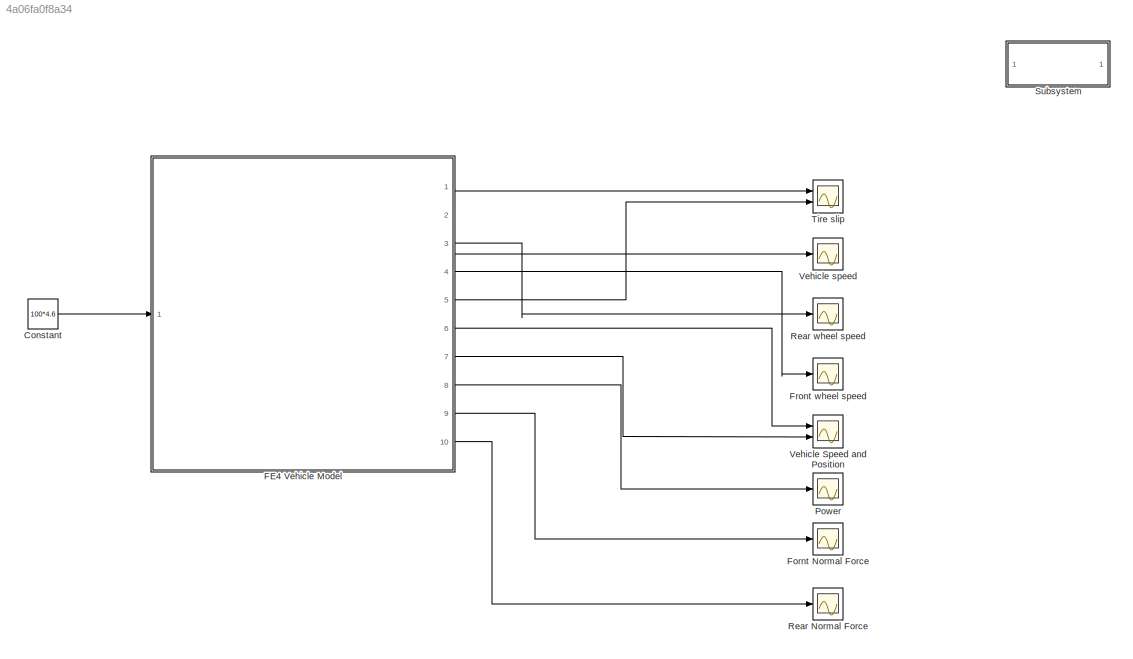
MODEL slx_4a06fa0f8a34
KIND model
CONFIG AbsTol = 1e-3
CONFIG FixedStep = auto
CONFIG MaxStep = auto
CONFIG MinStep = auto
CONFIG PreLoadFcn = load CarSim_FE4.mat\nload Vehicle_information_test_0118_2017.mat
CONFIG RelTol = 1e-3
CONFIG SampleTimeConstraint = Unconstrained
CONFIG Solver = ode23t
CONFIG SolverMode = Auto
CONFIG SolverName = ode23t
CONFIG StartTime = 0.0
CONFIG StopTime = 20
BLOCK [Constant] Constant
  Value = 100*4.6
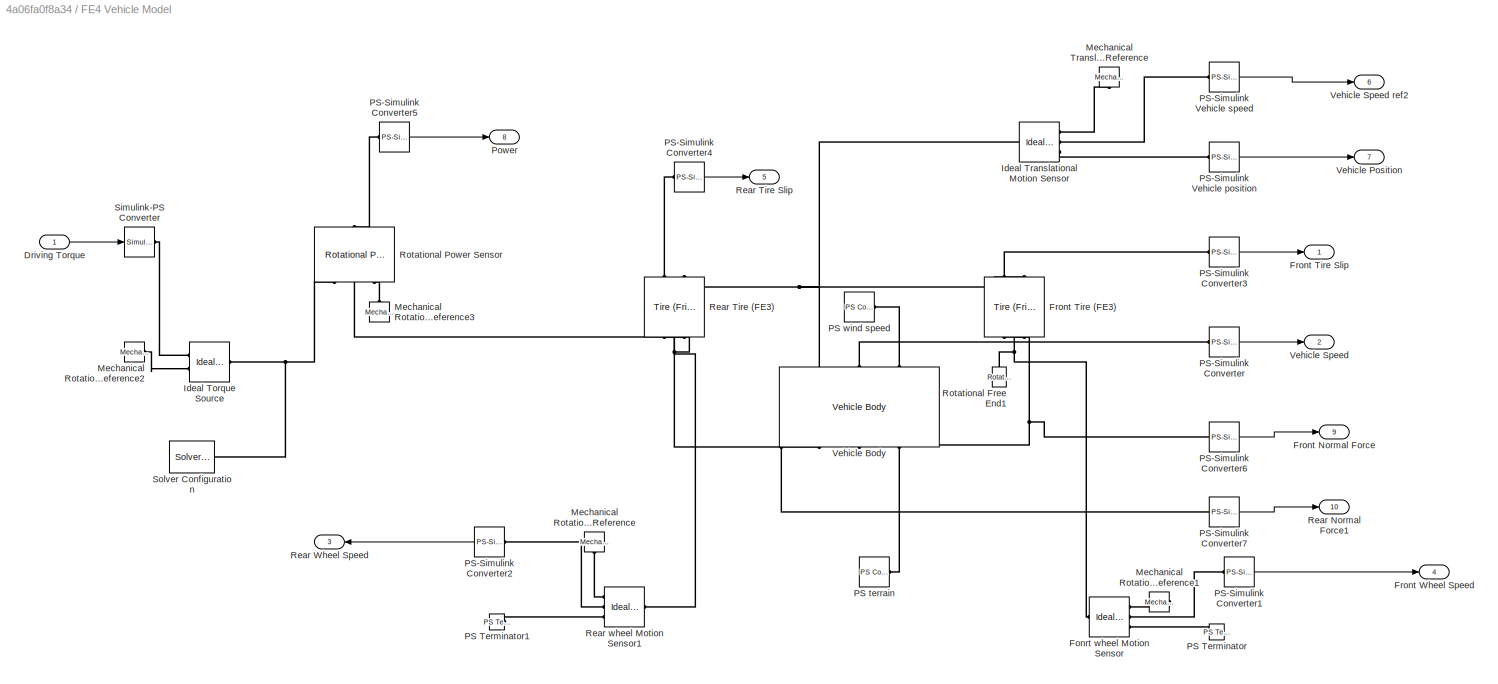
BLOCK [SubSystem] FE4 Vehicle Model
  Ports = [1, 10]
  RequestExecContextInheritance = off
  Variant = off
BLOCK [Inport] FE4 Vehicle Model/Driving Torque
  IconDisplay = Port number
BLOCK [Reference] FE4 Vehicle Model/Fonrt wheel Motion Sensor  REF=fl_lib/Mechanical/Mechanical Sensors/Ideal Rotational
Motion Sensor
  Ports = [0, 0, 0, 0, 0, 1, 3]
  SourceBlock = fl_lib/Mechanical/Mechanical Sensors/Ideal Rotational\nMotion Sensor
  SourceType = Ideal Rotational\nMotion Sensor
BLOCK [Outport] FE4 Vehicle Model/Front Normal Force
  IconDisplay = Port number
  Port = 9
BLOCK [Reference] FE4 Vehicle Model/Front Tire (FE3)  REF=sdl_lib/Tires & Vehicles/Tire (Friction
Parameterized)
  Ports = [0, 0, 0, 0, 0, 2, 2]
  SourceBlock = sdl_lib/Tires & Vehicles/Tire (Friction\nParameterized)
  SourceType = Tire (Friction\nParameterized)
BLOCK [Outport] FE4 Vehicle Model/Front Tire Slip
  IconDisplay = Port number
BLOCK [Outport] FE4 Vehicle Model/Front Wheel Speed
  IconDisplay = Port number
  Port = 4
BLOCK [Reference] FE4 Vehicle Model/Ideal Torque Source  REF=fl_lib/Mechanical/Mechanical Sources/Ideal Torque Source
  Ports = [0, 0, 0, 0, 0, 1, 2]
  SourceBlock = fl_lib/Mechanical/Mechanical Sources/Ideal Torque Source
  SourceType = Ideal Torque Source
BLOCK [Reference] FE4 Vehicle Model/Ideal Translational Motion Sensor  REF=fl_lib/Mechanical/Mechanical Sensors/Ideal Translational
Motion Sensor
  Ports = [0, 0, 0, 0, 0, 1, 3]
  SourceBlock = fl_lib/Mechanical/Mechanical Sensors/Ideal Translational\nMotion Sensor
  SourceType = Ideal Translational\nMotion Sensor
BLOCK [Reference] FE4 Vehicle Model/Mechanical Rotational Reference  REF=fl_lib/Mechanical/Rotational Elements/Mechanical
Rotational Reference
  Ports = [0, 0, 0, 0, 0, 1]
  SourceBlock = fl_lib/Mechanical/Rotational Elements/Mechanical\nRotational Reference
  SourceType = Mechanical\nRotational Reference
BLOCK [Reference] FE4 Vehicle Model/Mechanical Rotational Reference1  REF=fl_lib/Mechanical/Rotational Elements/Mechanical
Rotational Reference
  Ports = [0, 0, 0, 0, 0, 1]
  SourceBlock = fl_lib/Mechanical/Rotational Elements/Mechanical\nRotational Reference
  SourceType = Mechanical\nRotational Reference
BLOCK [Reference] FE4 Vehicle Model/Mechanical Rotational Reference2  REF=fl_lib/Mechanical/Rotational Elements/Mechanical
Rotational Reference
  Ports = [0, 0, 0, 0, 0, 1]
  SourceBlock = fl_lib/Mechanical/Rotational Elements/Mechanical\nRotational Reference
  SourceType = Mechanical\nRotational Reference
BLOCK [Reference] FE4 Vehicle Model/Mechanical Rotational Reference3  REF=fl_lib/Mechanical/Rotational Elements/Mechanical
Rotational Reference
  Ports = [0, 0, 0, 0, 0, 1]
  SourceBlock = fl_lib/Mechanical/Rotational Elements/Mechanical\nRotational Reference
  SourceType = Mechanical\nRotational Reference
BLOCK [Reference] FE4 Vehicle Model/Mechanical Translational Reference  REF=fl_lib/Mechanical/Translational
Elements/Mechanical
Translational
Reference
  Ports = [0, 0, 0, 0, 0, 1]
  SourceBlock = fl_lib/Mechanical/Translational\nElements/Mechanical\nTranslational\nReference
  SourceType = Mechanical\nTranslational\nReference
BLOCK [Reference] FE4 Vehicle Model/PS Terminator  REF=fl_lib/Physical Signals/Sinks/PS Terminator
  Ports = [0, 0, 0, 0, 0, 1]
  SourceBlock = fl_lib/Physical Signals/Sinks/PS Terminator
  SourceType = PS Terminator
BLOCK [Reference] FE4 Vehicle Model/PS Terminator1  REF=fl_lib/Physical Signals/Sinks/PS Terminator
  Ports = [0, 0, 0, 0, 0, 1]
  SourceBlock = fl_lib/Physical Signals/Sinks/PS Terminator
  SourceType = PS Terminator
BLOCK [Reference] FE4 Vehicle Model/PS terrain  REF=fl_lib/Physical Signals/Sources/PS Constant
  Ports = [0, 0, 0, 0, 0, 0, 1]
  SourceBlock = fl_lib/Physical Signals/Sources/PS Constant
  SourceType = PS Constant
BLOCK [Reference] FE4 Vehicle Model/PS wind speed  REF=fl_lib/Physical Signals/Sources/PS Constant
  Ports = [0, 0, 0, 0, 0, 0, 1]
  SourceBlock = fl_lib/Physical Signals/Sources/PS Constant
  SourceType = PS Constant
BLOCK [Reference] FE4 Vehicle Model/PS-Simulink Converter  REF=nesl_utility/PS-Simulink
Converter
  Ports = [0, 1, 0, 0, 0, 1]
  SourceBlock = nesl_utility/PS-Simulink\nConverter
  SourceType = PS-Simulink\nConverter
BLOCK [Reference] FE4 Vehicle Model/PS-Simulink Converter1  REF=nesl_utility/PS-Simulink
Converter
  Ports = [0, 1, 0, 0, 0, 1]
  SourceBlock = nesl_utility/PS-Simulink\nConverter
  SourceType = PS-Simulink\nConverter
BLOCK [Reference] FE4 Vehicle Model/PS-Simulink Converter2  REF=nesl_utility/PS-Simulink
Converter
  Ports = [0, 1, 0, 0, 0, 1]
  SourceBlock = nesl_utility/PS-Simulink\nConverter
  SourceType = PS-Simulink\nConverter
BLOCK [Reference] FE4 Vehicle Model/PS-Simulink Converter3  REF=nesl_utility/PS-Simulink
Converter
  Ports = [0, 1, 0, 0, 0, 1]
  SourceBlock = nesl_utility/PS-Simulink\nConverter
  SourceType = PS-Simulink\nConverter
BLOCK [Reference] FE4 Vehicle Model/PS-Simulink Converter4  REF=nesl_utility/PS-Simulink
Converter
  Ports = [0, 1, 0, 0, 0, 1]
  SourceBlock = nesl_utility/PS-Simulink\nConverter
  SourceType = PS-Simulink\nConverter
BLOCK [Reference] FE4 Vehicle Model/PS-Simulink Converter5  REF=nesl_utility/PS-Simulink
Converter
  Ports = [0, 1, 0, 0, 0, 1]
  SourceBlock = nesl_utility/PS-Simulink\nConverter
  SourceType = PS-Simulink\nConverter
BLOCK [Reference] FE4 Vehicle Model/PS-Simulink Converter6  REF=nesl_utility/PS-Simulink
Converter
  Ports = [0, 1, 0, 0, 0, 1]
  SourceBlock = nesl_utility/PS-Simulink\nConverter
  SourceType = PS-Simulink\nConverter
BLOCK [Reference] FE4 Vehicle Model/PS-Simulink Converter7  REF=nesl_utility/PS-Simulink
Converter
  Ports = [0, 1, 0, 0, 0, 1]
  SourceBlock = nesl_utility/PS-Simulink\nConverter
  SourceType = PS-Simulink\nConverter
BLOCK [Reference] FE4 Vehicle Model/PS-Simulink Vehicle position  REF=nesl_utility/PS-Simulink
Converter
  Ports = [0, 1, 0, 0, 0, 1]
  SourceBlock = nesl_utility/PS-Simulink\nConverter
  SourceType = PS-Simulink\nConverter
BLOCK [Reference] FE4 Vehicle Model/PS-Simulink Vehicle speed  REF=nesl_utility/PS-Simulink
Converter
  Ports = [0, 1, 0, 0, 0, 1]
  SourceBlock = nesl_utility/PS-Simulink\nConverter
  SourceType = PS-Simulink\nConverter
BLOCK [Outport] FE4 Vehicle Model/Power
  IconDisplay = Port number
  Port = 8
BLOCK [Outport] FE4 Vehicle Model/Rear Normal Force1
  IconDisplay = Port number
  Port = 10
BLOCK [Reference] FE4 Vehicle Model/Rear Tire (FE3)  REF=sdl_lib/Tires & Vehicles/Tire (Friction
Parameterized)
  Ports = [0, 0, 0, 0, 0, 2, 2]
  SourceBlock = sdl_lib/Tires & Vehicles/Tire (Friction\nParameterized)
  SourceType = Tire (Friction\nParameterized)
BLOCK [Outport] FE4 Vehicle Model/Rear Tire Slip
  IconDisplay = Port number
  Port = 5
BLOCK [Outport] FE4 Vehicle Model/Rear Wheel Speed
  IconDisplay = Port number
  Port = 3
BLOCK [Reference] FE4 Vehicle Model/Rear wheel Motion Sensor1  REF=fl_lib/Mechanical/Mechanical Sensors/Ideal Rotational
Motion Sensor
  Ports = [0, 0, 0, 0, 0, 1, 3]
  SourceBlock = fl_lib/Mechanical/Mechanical Sensors/Ideal Rotational\nMotion Sensor
  SourceType = Ideal Rotational\nMotion Sensor
BLOCK [Reference] FE4 Vehicle Model/Rotational Free End1  REF=fl_lib/Mechanical/Rotational Elements/Rotational Free End
  Ports = [0, 0, 0, 0, 0, 1]
  SourceBlock = fl_lib/Mechanical/Rotational Elements/Rotational Free End
  SourceType = Rotational Free End
BLOCK [Reference] FE4 Vehicle Model/Rotational Power Sensor  REF=sdl_lib/Sensors/Rotational Power
Sensor
  Ports = [0, 0, 0, 0, 0, 3, 1]
  SourceBlock = sdl_lib/Sensors/Rotational Power\nSensor
  SourceType = Rotational Power\nSensor
BLOCK [Reference] FE4 Vehicle Model/Simulink-PS Converter  REF=nesl_utility/Simulink-PS
Converter
  Ports = [1, 0, 0, 0, 0, 0, 1]
  SourceBlock = nesl_utility/Simulink-PS\nConverter
  SourceType = Simulink-PS\nConverter
BLOCK [Reference] FE4 Vehicle Model/Solver Configuration  REF=nesl_utility/Solver
Configuration
  Ports = [0, 0, 0, 0, 0, 0, 1]
  SourceBlock = nesl_utility/Solver\nConfiguration
  SourceType = Solver\nConfiguration
BLOCK [Reference] FE4 Vehicle Model/Vehicle Body  REF=sdl_lib/Tires & Vehicles/Vehicle Body
  Ports = [0, 0, 0, 0, 0, 3, 3]
  SourceBlock = sdl_lib/Tires & Vehicles/Vehicle Body
  SourceType = Vehicle Body
BLOCK [Outport] FE4 Vehicle Model/Vehicle Position
  IconDisplay = Port number
  Port = 7
BLOCK [Outport] FE4 Vehicle Model/Vehicle Speed
  IconDisplay = Port number
  Port = 2
BLOCK [Outport] FE4 Vehicle Model/Vehicle Speed ref2
  IconDisplay = Port number
  Port = 6
BLOCK [Scope] Fornt Normal Force
  Ports = [1]
  ScopeSpecificationString = Simulink.scopes.TimeScopeBlockCfg('CurrentConfiguration', extmgr.ConfigurationSet(extmgr.Configuration('Core','General UI',true),extmgr.Configuration('Core','Source UI',true),extmgr.Configuration('Sources','WiredSimulink',true,'DataLoggingLimitDataPoints',true,'DataLoggingSaveFormat','Array','DataLoggingDecimation','1','DataLoggingDecimateData',true,'DataLoggingVariableName','ScopeData3'),extmgr.C...<+1733ch>
BLOCK [Scope] Front wheel speed
  Ports = [1]
  ScopeSpecificationString = Simulink.scopes.TimeScopeBlockCfg('CurrentConfiguration', extmgr.ConfigurationSet(extmgr.Configuration('Core','General UI',true),extmgr.Configuration('Core','Source UI',true),extmgr.Configuration('Sources','WiredSimulink',true,'DataLoggingLimitDataPoints',true,'DataLoggingSaveFormat','Array','DataLoggingDecimation','1','DataLoggingDecimateData',true,'DataLoggingVariableName','ScopeData4'),extmgr.C...<+1733ch>
BLOCK [Scope] Power
  Ports = [1]
  ScopeSpecificationString = Simulink.scopes.TimeScopeBlockCfg('CurrentConfiguration', extmgr.ConfigurationSet(extmgr.Configuration('Core','General UI',true),extmgr.Configuration('Core','Source UI',true),extmgr.Configuration('Sources','WiredSimulink',true,'DataLoggingLimitDataPoints',true,'DataLoggingSaveFormat','Array','DataLoggingDecimation','1','DataLoggingDecimateData',true,'DataLoggingVariableName','ScopeData2'),extmgr.C...<+1723ch>
BLOCK [Scope] Rear Normal Force
  Ports = [1]
  ScopeSpecificationString = Simulink.scopes.TimeScopeBlockCfg('CurrentConfiguration', extmgr.ConfigurationSet(extmgr.Configuration('Core','General UI',true),extmgr.Configuration('Core','Source UI',true),extmgr.Configuration('Sources','WiredSimulink',true,'DataLoggingLimitDataPoints',true,'DataLoggingSaveFormat','Array','DataLoggingDecimation','1','DataLoggingDecimateData',true,'DataLoggingVariableName','ScopeData4'),extmgr.C...<+1734ch>
BLOCK [Scope] Rear wheel speed
  Ports = [1]
  ScopeSpecificationString = Simulink.scopes.TimeScopeBlockCfg('CurrentConfiguration', extmgr.ConfigurationSet(extmgr.Configuration('Core','General UI',true),extmgr.Configuration('Core','Source UI',true),extmgr.Configuration('Sources','WiredSimulink',true,'DataLoggingVariableName','ScopeData1'),extmgr.Configuration('Visuals','Time Domain',true,'SerializedDisplays',{struct('MinYLimReal','-110.78091','MaxYLimReal','997.02819','...<+1447ch>
BLOCK [SubSystem] Subsystem
  OpenFcn = open_system('simscape')
  Ports = []
  RequestExecContextInheritance = off
  ShowPortLabels = none
  Variant = off
BLOCK [Scope] Tire slip
  NumInputPorts = 2
  Ports = [2]
  ScopeSpecificationString = Simulink.scopes.TimeScopeBlockCfg('CurrentConfiguration', extmgr.ConfigurationSet(extmgr.Configuration('Core','General UI',true),extmgr.Configuration('Core','Source UI',true),extmgr.Configuration('Sources','WiredSimulink',true,'DataLoggingLimitDataPoints',true,'DataLoggingSaveFormat','Array','DataLoggingDecimation','1','DataLoggingDecimateData',true,'DataLoggingVariableName','ScopeData1'),extmgr.C...<+2321ch>
BLOCK [Scope] Vehicle Speed and Position
  NumInputPorts = 2
  Ports = [2]
  ScopeSpecificationString = Simulink.scopes.TimeScopeBlockCfg('CurrentConfiguration', extmgr.ConfigurationSet(extmgr.Configuration('Core','General UI',true),extmgr.Configuration('Core','Source UI',true),extmgr.Configuration('Sources','WiredSimulink',true,'DataLoggingLimitDataPoints',true,'DataLoggingSaveFormat','Array','DataLoggingDecimation','1','DataLoggingDecimateData',true,'DataLoggingVariableName','ScopeData1'),extmgr.C...<+2317ch>
BLOCK [Scope] Vehicle speed
  Ports = [1]
  ScopeSpecificationString = Simulink.scopes.TimeScopeBlockCfg('CurrentConfiguration', extmgr.ConfigurationSet(extmgr.Configuration('Core','General UI',true),extmgr.Configuration('Core','Source UI',true),extmgr.Configuration('Sources','WiredSimulink',true,'DataLoggingLimitDataPoints',true,'DataLoggingSaveFormat','Array','DataLoggingDecimation','1','DataLoggingDecimateData',true),extmgr.Configuration('Visuals','Time Domain',tr...<+1711ch>
LINE Constant:1 -> FE4 Vehicle Model:1
LINE FE4 Vehicle Model/Driving Torque:1 -> FE4 Vehicle Model/Simulink-PS Converter:1
LINE FE4 Vehicle Model/PS-Simulink Converter1:1 -> FE4 Vehicle Model/Front Wheel Speed:1
LINE FE4 Vehicle Model/PS-Simulink Converter2:1 -> FE4 Vehicle Model/Rear Wheel Speed:1
LINE FE4 Vehicle Model/PS-Simulink Converter3:1 -> FE4 Vehicle Model/Front Tire Slip:1
LINE FE4 Vehicle Model/PS-Simulink Converter4:1 -> FE4 Vehicle Model/Rear Tire Slip:1
LINE FE4 Vehicle Model/PS-Simulink Converter5:1 -> FE4 Vehicle Model/Power:1
LINE FE4 Vehicle Model/PS-Simulink Converter6:1 -> FE4 Vehicle Model/Front Normal Force:1
LINE FE4 Vehicle Model/PS-Simulink Converter7:1 -> FE4 Vehicle Model/Rear Normal Force1:1
LINE FE4 Vehicle Model/PS-Simulink Converter:1 -> FE4 Vehicle Model/Vehicle Speed:1
LINE FE4 Vehicle Model/PS-Simulink Vehicle position:1 -> FE4 Vehicle Model/Vehicle Position:1
LINE FE4 Vehicle Model/PS-Simulink Vehicle speed:1 -> FE4 Vehicle Model/Vehicle Speed ref2:1
LINE FE4 Vehicle Model:1 -> Tire slip:1
LINE FE4 Vehicle Model:10 -> Rear Normal Force:1
LINE FE4 Vehicle Model:2 -> Vehicle speed:1
LINE FE4 Vehicle Model:3 -> Rear wheel speed:1
LINE FE4 Vehicle Model:4 -> Front wheel speed:1
LINE FE4 Vehicle Model:5 -> Tire slip:2
LINE FE4 Vehicle Model:6 -> Vehicle Speed and Position:1
LINE FE4 Vehicle Model:7 -> Vehicle Speed and Position:2
LINE FE4 Vehicle Model:8 -> Power:1
LINE FE4 Vehicle Model:9 -> Fornt Normal Force:1
PNET net1: FE4 Vehicle Model/Fonrt wheel Motion Sensor:LConn1 -- FE4 Vehicle Model/Front Tire (FE3):LConn2 -- FE4 Vehicle Model/Rotational Free End1:LConn1
PLINE FE4 Vehicle Model/Fonrt wheel Motion Sensor:RConn1 -- FE4 Vehicle Model/Mechanical Rotational Reference1:LConn1
PLINE FE4 Vehicle Model/Fonrt wheel Motion Sensor:RConn2 -- FE4 Vehicle Model/PS-Simulink Converter1:LConn1
PLINE FE4 Vehicle Model/Fonrt wheel Motion Sensor:RConn3 -- FE4 Vehicle Model/PS Terminator:LConn1
PNET net2: FE4 Vehicle Model/Front Tire (FE3):LConn1 -- FE4 Vehicle Model/PS-Simulink Converter6:LConn1 -- FE4 Vehicle Model/Vehicle Body:RConn2
PLINE FE4 Vehicle Model/Front Tire (FE3):RConn1 -- FE4 Vehicle Model/PS-Simulink Converter3:LConn1
PNET net3: FE4 Vehicle Model/Front Tire (FE3):RConn2 -- FE4 Vehicle Model/Ideal Translational Motion Sensor:LConn1 -- FE4 Vehicle Model/Rear Tire (FE3):RConn2 -- FE4 Vehicle Model/Vehicle Body:LConn1
PNET net4: FE4 Vehicle Model/Ideal Torque Source:LConn1 -- FE4 Vehicle Model/Rotational Power Sensor:LConn1 -- FE4 Vehicle Model/Solver Configuration:RConn1
PLINE FE4 Vehicle Model/Ideal Torque Source:RConn1 -- FE4 Vehicle Model/Simulink-PS Converter:RConn1
PLINE FE4 Vehicle Model/Ideal Torque Source:RConn2 -- FE4 Vehicle Model/Mechanical Rotational Reference2:LConn1
PLINE FE4 Vehicle Model/Ideal Translational Motion Sensor:RConn1 -- FE4 Vehicle Model/Mechanical Translational Reference:LConn1
PLINE FE4 Vehicle Model/Ideal Translational Motion Sensor:RConn2 -- FE4 Vehicle Model/PS-Simulink Vehicle speed:LConn1
PLINE FE4 Vehicle Model/Ideal Translational Motion Sensor:RConn3 -- FE4 Vehicle Model/PS-Simulink Vehicle position:LConn1
PLINE FE4 Vehicle Model/Mechanical Rotational Reference3:LConn1 -- FE4 Vehicle Model/Rotational Power Sensor:LConn3
PLINE FE4 Vehicle Model/Mechanical Rotational Reference:LConn1 -- FE4 Vehicle Model/Rear wheel Motion Sensor1:RConn1
PLINE FE4 Vehicle Model/PS Terminator1:LConn1 -- FE4 Vehicle Model/Rear wheel Motion Sensor1:RConn3
PLINE FE4 Vehicle Model/PS terrain:RConn1 -- FE4 Vehicle Model/Vehicle Body:RConn3
PLINE FE4 Vehicle Model/PS wind speed:RConn1 -- FE4 Vehicle Model/Vehicle Body:LConn3
PLINE FE4 Vehicle Model/PS-Simulink Converter2:LConn1 -- FE4 Vehicle Model/Rear wheel Motion Sensor1:RConn2
PLINE FE4 Vehicle Model/PS-Simulink Converter4:LConn1 -- FE4 Vehicle Model/Rear Tire (FE3):RConn1
PLINE FE4 Vehicle Model/PS-Simulink Converter5:LConn1 -- FE4 Vehicle Model/Rotational Power Sensor:RConn1
PNET net5: FE4 Vehicle Model/PS-Simulink Converter7:LConn1 -- FE4 Vehicle Model/Rear Tire (FE3):LConn1 -- FE4 Vehicle Model/Vehicle Body:RConn1
PLINE FE4 Vehicle Model/PS-Simulink Converter:LConn1 -- FE4 Vehicle Model/Vehicle Body:LConn2
PNET net6: FE4 Vehicle Model/Rear Tire (FE3):LConn2 -- FE4 Vehicle Model/Rear wheel Motion Sensor1:LConn1 -- FE4 Vehicle Model/Rotational Power Sensor:LConn2
note: PNET lines group multi-terminal physical nets as a canonical sorted terminal list (undirected conserving connections); 2-terminal nets keep the pairwise PLINE form
